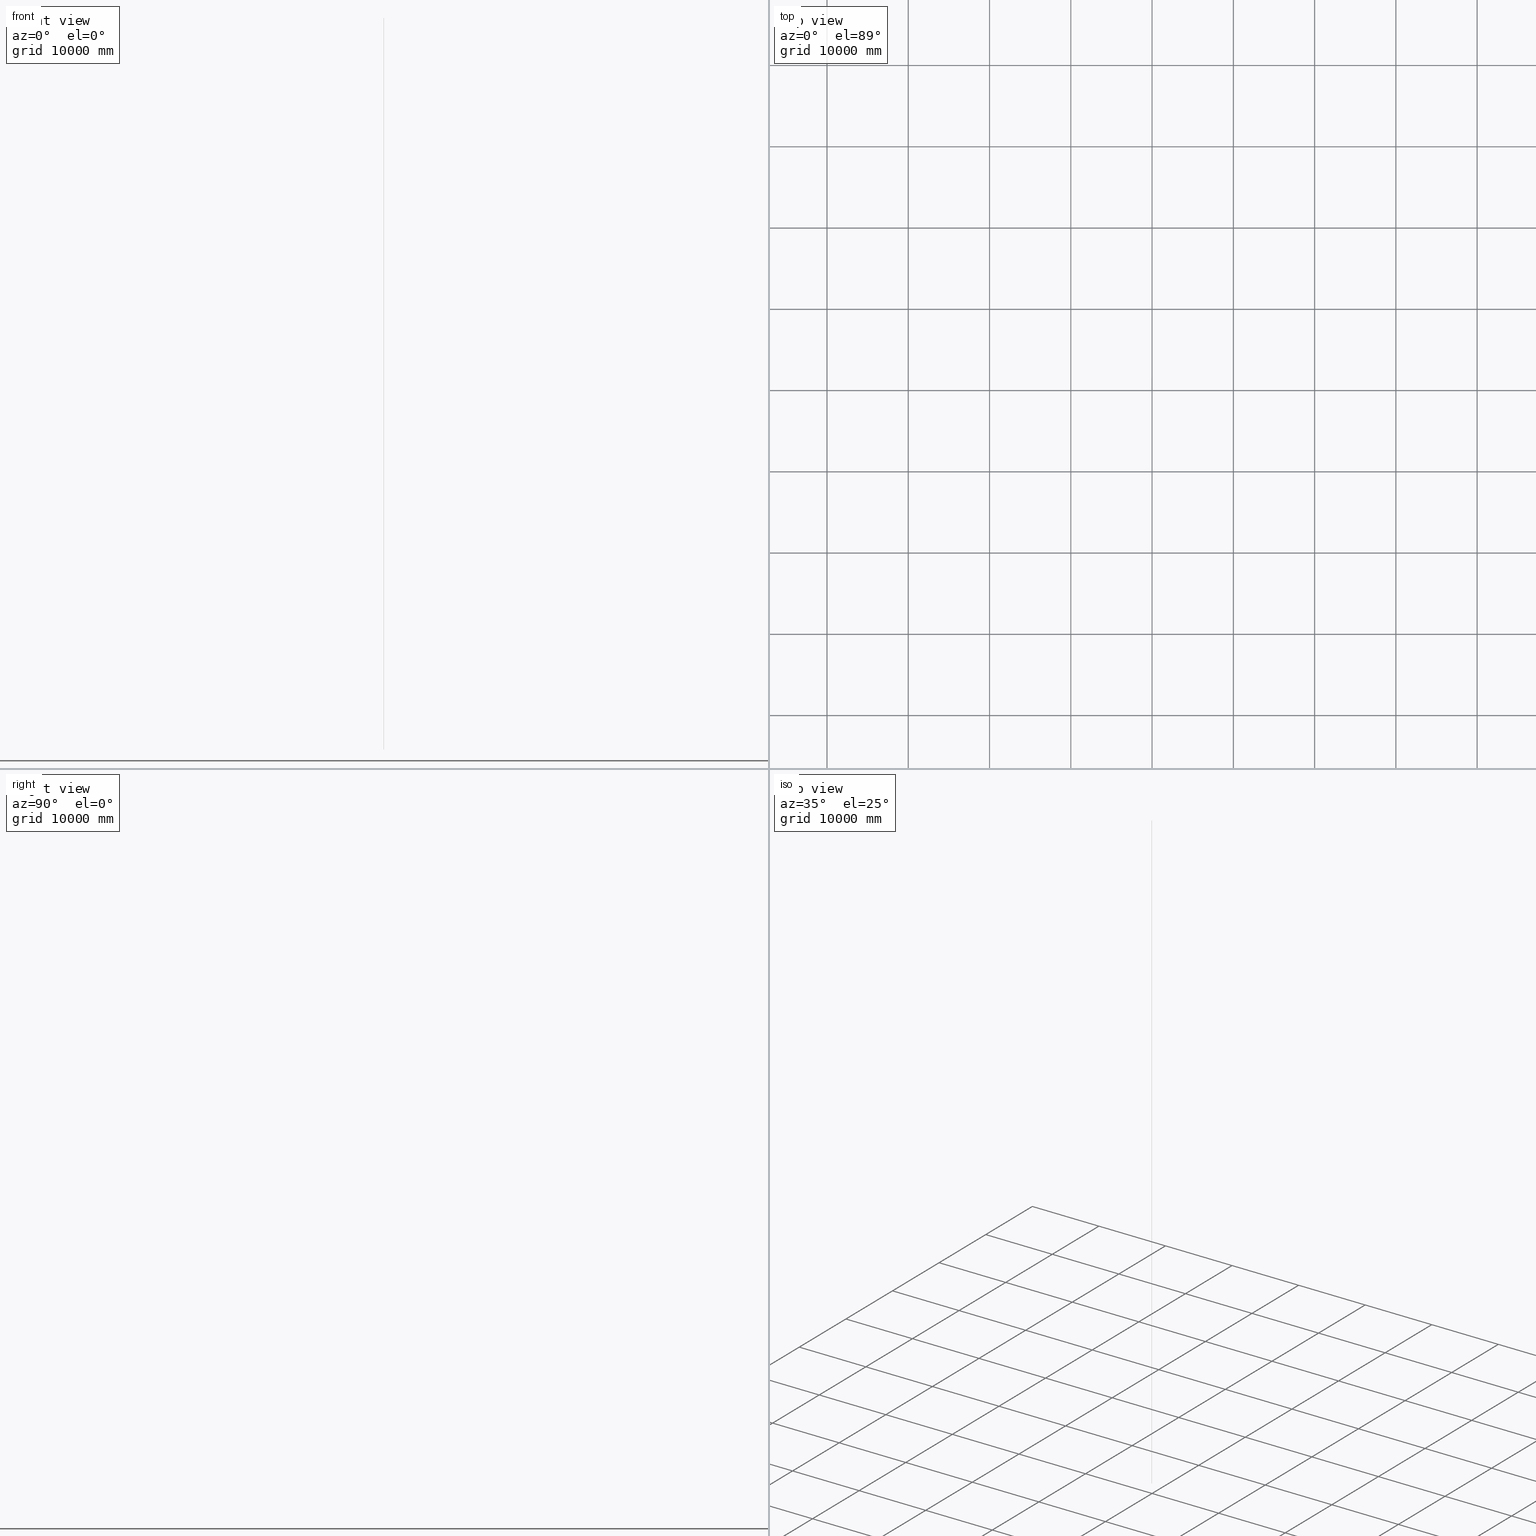
[diagram: canonical four-view strip — front | top / right | iso, engineering-drawing reading convention]
A machine part, canonical four-view strip (front | top / right | iso — engineering-drawing reading convention). The complete STEP part file that produces these views, byte-faithful:
ISO-10303-21;
HEADER;
FILE_DESCRIPTION((''),'2;1');
FILE_NAME('S024363701','2014-01-14T',('RPNU043'),(''),
'PRO/ENGINEER BY PARAMETRIC TECHNOLOGY CORPORATION, 2013050',
'PRO/ENGINEER BY PARAMETRIC TECHNOLOGY CORPORATION, 2013050','');
FILE_SCHEMA(('CONFIG_CONTROL_DESIGN'));
ENDSEC;
DATA;
#1=DIRECTION('',(-1.E0,0.E0,0.E0));
#2=VECTOR('',#1,1.7E1);
#3=CARTESIAN_POINT('',(-3.E0,2.E0,7.275957614183E-12));
#4=LINE('',#3,#2);
#5=DIRECTION('',(0.E0,0.E0,1.E0));
#6=VECTOR('',#5,9.E4);
#7=CARTESIAN_POINT('',(-2.E1,2.E0,7.275957614183E-12));
#8=LINE('',#7,#6);
#9=DIRECTION('',(1.E0,0.E0,0.E0));
#10=VECTOR('',#9,1.7E1);
#11=CARTESIAN_POINT('',(-2.E1,2.E0,9.E4));
#12=LINE('',#11,#10);
#13=DIRECTION('',(0.E0,0.E0,-1.E0));
#14=VECTOR('',#13,9.E4);
#15=CARTESIAN_POINT('',(-3.E0,2.E0,9.E4));
#16=LINE('',#15,#14);
#17=CARTESIAN_POINT('',(-2.E1,2.E0,7.275957614183E-12));
#18=CARTESIAN_POINT('',(-3.E0,2.E0,7.275957614183E-12));
#19=VERTEX_POINT('',#17);
#20=VERTEX_POINT('',#18);
#21=CARTESIAN_POINT('',(-3.E0,2.E0,9.E4));
#22=VERTEX_POINT('',#21);
#23=CARTESIAN_POINT('',(-2.E1,2.E0,9.E4));
#24=VERTEX_POINT('',#23);
#25=CARTESIAN_POINT('',(-1.15E1,2.E0,4.5E4));
#26=DIRECTION('',(0.E0,1.E0,0.E0));
#27=DIRECTION('',(1.E0,0.E0,0.E0));
#28=AXIS2_PLACEMENT_3D('',#25,#26,#27);
#29=PLANE('',#28);
#31=ORIENTED_EDGE('',*,*,#30,.T.);
#33=ORIENTED_EDGE('',*,*,#32,.T.);
#35=ORIENTED_EDGE('',*,*,#34,.T.);
#37=ORIENTED_EDGE('',*,*,#36,.T.);
#38=EDGE_LOOP('',(#31,#33,#35,#37));
#39=FACE_OUTER_BOUND('',#38,.F.);
#40=ADVANCED_FACE('',(#39),#29,.F.);
#41=OPEN_SHELL('',(#40));
#42=DIRECTION('',(1.E0,0.E0,0.E0));
#43=VECTOR('',#42,2.E1);
#44=CARTESIAN_POINT('',(-2.E1,5.E0,7.275957614183E-12));
#45=LINE('',#44,#43);
#46=DIRECTION('',(0.E0,0.E0,1.E0));
#47=VECTOR('',#46,9.E4);
#48=CARTESIAN_POINT('',(0.E0,5.E0,7.275957614183E-12));
#49=LINE('',#48,#47);
#50=DIRECTION('',(-1.E0,0.E0,0.E0));
#51=VECTOR('',#50,2.E1);
#52=CARTESIAN_POINT('',(0.E0,5.E0,9.E4));
#53=LINE('',#52,#51);
#54=DIRECTION('',(0.E0,0.E0,-1.E0));
#55=VECTOR('',#54,9.E4);
#56=CARTESIAN_POINT('',(-2.E1,5.E0,9.E4));
#57=LINE('',#56,#55);
#58=CARTESIAN_POINT('',(0.E0,5.E0,7.275957614183E-12));
#59=CARTESIAN_POINT('',(-2.E1,5.E0,7.275957614183E-12));
#60=VERTEX_POINT('',#58);
#61=VERTEX_POINT('',#59);
#62=CARTESIAN_POINT('',(-2.E1,5.E0,9.E4));
#63=VERTEX_POINT('',#62);
#64=CARTESIAN_POINT('',(0.E0,5.E0,9.E4));
#65=VERTEX_POINT('',#64);
#66=CARTESIAN_POINT('',(-1.E1,5.E0,4.5E4));
#67=DIRECTION('',(0.E0,1.E0,0.E0));
#68=DIRECTION('',(-1.E0,0.E0,0.E0));
#69=AXIS2_PLACEMENT_3D('',#66,#67,#68);
#70=PLANE('',#69);
#72=ORIENTED_EDGE('',*,*,#71,.T.);
#74=ORIENTED_EDGE('',*,*,#73,.T.);
#76=ORIENTED_EDGE('',*,*,#75,.T.);
#78=ORIENTED_EDGE('',*,*,#77,.T.);
#79=EDGE_LOOP('',(#72,#74,#76,#78));
#80=FACE_OUTER_BOUND('',#79,.F.);
#81=ADVANCED_FACE('',(#80),#70,.T.);
#82=OPEN_SHELL('',(#81));
#83=SHELL_BASED_SURFACE_MODEL('',(#41,#82));
#85=DIMENSIONAL_EXPONENTS(0.E0,0.E0,0.E0,0.E0,0.E0,0.E0,0.E0);
#87=PLANE_ANGLE_MEASURE_WITH_UNIT(PLANE_ANGLE_MEASURE(1.745329251994E-2),#86);
#88=(CONVERSION_BASED_UNIT('DEGREE',#87)NAMED_UNIT(*)PLANE_ANGLE_UNIT());
#90=UNCERTAINTY_MEASURE_WITH_UNIT(LENGTH_MEASURE(8.999640227213E0),#84,
'closure',
'Maximum model space distance between geometric entities at asserted connectivities');
#91=(GEOMETRIC_REPRESENTATION_CONTEXT(3)GLOBAL_UNCERTAINTY_ASSIGNED_CONTEXT(
(#90))GLOBAL_UNIT_ASSIGNED_CONTEXT((#84,#88,#89))REPRESENTATION_CONTEXT('ID1',
'3'));
#93=APPLICATION_CONTEXT(
'CONFIGURATION CONTROLLED 3D DESIGNS OF MECHANICAL PARTS AND ASSEMBLIES');
#94=APPLICATION_PROTOCOL_DEFINITION('international standard',
'config_control_design',1994,#93);
#95=DESIGN_CONTEXT('',#93,'design');
#96=MECHANICAL_CONTEXT('',#93,'mechanical');
#97=PRODUCT('S024363701','S024363701','NOT SPECIFIED',(#96));
#98=PRODUCT_DEFINITION_FORMATION_WITH_SPECIFIED_SOURCE('1','LAST_VERSION',#97,
.MADE.);
#102=PRODUCT_CATEGORY('part','');
#103=PRODUCT_RELATED_PRODUCT_CATEGORY('detail','',(#97));
#104=PRODUCT_CATEGORY_RELATIONSHIP('','',#102,#103);
#105=SECURITY_CLASSIFICATION_LEVEL('unclassified');
#106=SECURITY_CLASSIFICATION('','',#105);
#107=CC_DESIGN_SECURITY_CLASSIFICATION(#106,(#98));
#108=APPROVAL_STATUS('approved');
#109=APPROVAL(#108,'');
#110=CC_DESIGN_APPROVAL(#109,(#106,#98,#99));
#111=CALENDAR_DATE(114,14,1);
#112=COORDINATED_UNIVERSAL_TIME_OFFSET(5,30,.AHEAD.);
#113=LOCAL_TIME(15,41,6.E0,#112);
#114=DATE_AND_TIME(#111,#113);
#115=APPROVAL_DATE_TIME(#114,#109);
#116=DATE_TIME_ROLE('creation_date');
#117=CC_DESIGN_DATE_AND_TIME_ASSIGNMENT(#114,#116,(#99));
#118=DATE_TIME_ROLE('classification_date');
#119=CC_DESIGN_DATE_AND_TIME_ASSIGNMENT(#114,#118,(#106));
#120=PERSON('UNSPECIFIED','UNSPECIFIED',$,$,$,$);
#121=ORGANIZATION('UNSPECIFIED','UNSPECIFIED','UNSPECIFIED');
#122=PERSON_AND_ORGANIZATION(#120,#121);
#123=APPROVAL_ROLE('approver');
#124=APPROVAL_PERSON_ORGANIZATION(#122,#109,#123);
#125=PERSON_AND_ORGANIZATION_ROLE('creator');
#126=CC_DESIGN_PERSON_AND_ORGANIZATION_ASSIGNMENT(#122,#125,(#98,#99));
#127=PERSON_AND_ORGANIZATION_ROLE('design_supplier');
#128=CC_DESIGN_PERSON_AND_ORGANIZATION_ASSIGNMENT(#122,#127,(#98));
#129=PERSON_AND_ORGANIZATION_ROLE('classification_officer');
#130=CC_DESIGN_PERSON_AND_ORGANIZATION_ASSIGNMENT(#122,#129,(#106));
#131=PERSON_AND_ORGANIZATION_ROLE('design_owner');
#132=CC_DESIGN_PERSON_AND_ORGANIZATION_ASSIGNMENT(#122,#131,(#97));
#30=EDGE_CURVE('',#20,#19,#4,.T.);
#32=EDGE_CURVE('',#19,#24,#8,.T.);
#34=EDGE_CURVE('',#24,#22,#12,.T.);
#36=EDGE_CURVE('',#22,#20,#16,.T.);
#71=EDGE_CURVE('',#61,#60,#45,.T.);
#73=EDGE_CURVE('',#60,#65,#49,.T.);
#75=EDGE_CURVE('',#65,#63,#53,.T.);
#77=EDGE_CURVE('',#63,#61,#57,.T.);
#84=(LENGTH_UNIT()NAMED_UNIT(*)SI_UNIT(.MILLI.,.METRE.));
#86=(NAMED_UNIT(*)PLANE_ANGLE_UNIT()SI_UNIT($,.RADIAN.));
#89=(NAMED_UNIT(*)SI_UNIT($,.STERADIAN.)SOLID_ANGLE_UNIT());
#92=MANIFOLD_SURFACE_SHAPE_REPRESENTATION('',(#83),#91);
#99=PRODUCT_DEFINITION('design','',#98,#95);
#100=PRODUCT_DEFINITION_SHAPE('','SHAPE FOR S024363701.',#99);
#101=SHAPE_DEFINITION_REPRESENTATION(#100,#92);
ENDSEC;
END-ISO-10303-21;
